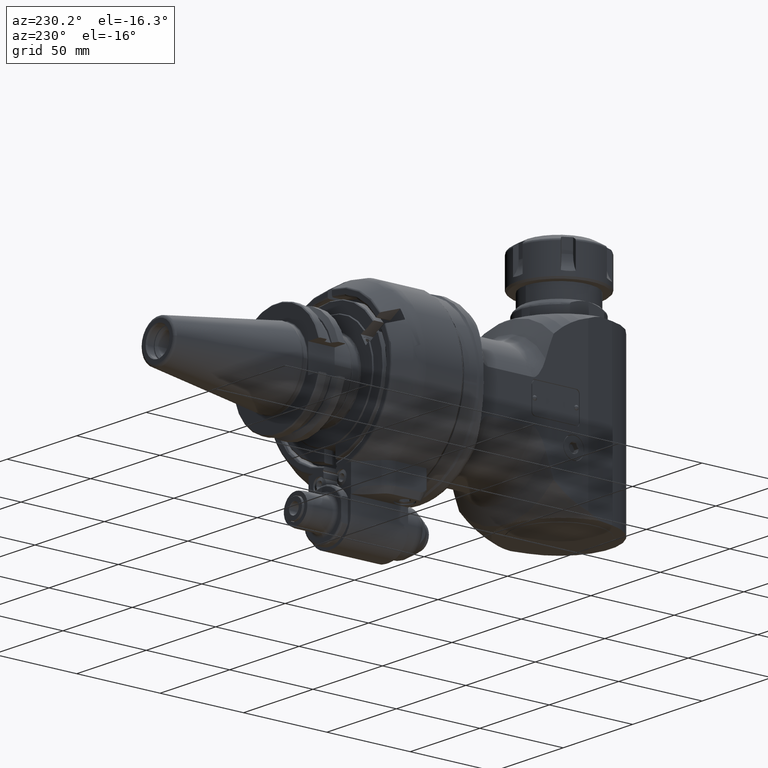
[diagram: clean part render]
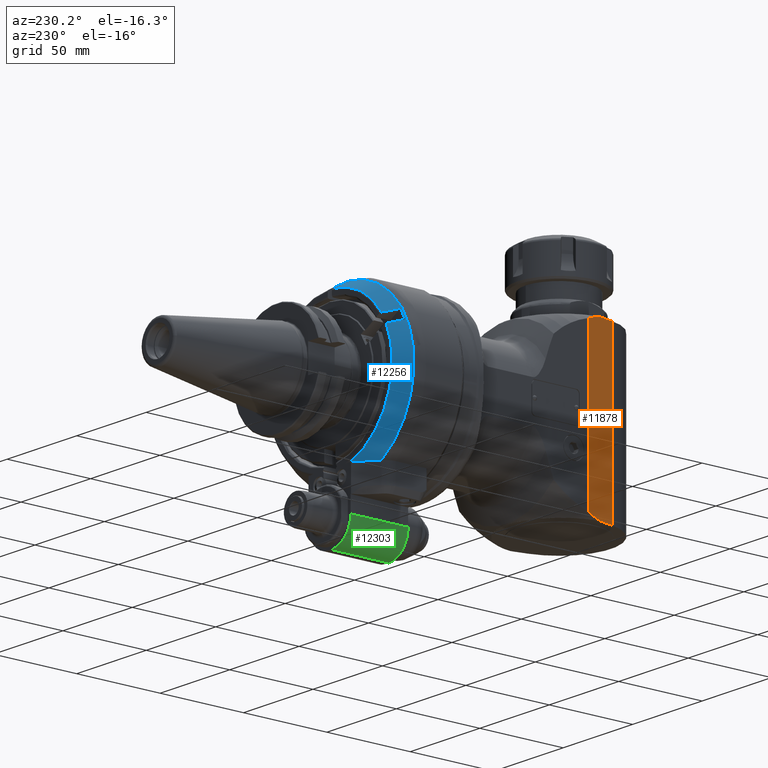
[diagram: same view with three faces highlighted in distinct colors, each labeled with its STEP entity id]
A machine part, auxiliary view with three faces highlighted in distinct colors.
Their STEP definitions:

[orange] entity #11878 — the highlighted planar face has unit normal (0.9781, 0.2079, 0).
#194=ELLIPSE('',#12675,0.276420833278582,0.0986575701612919);
#336=B_SPLINE_CURVE_WITH_KNOTS('',3,(#17508,#17509,#17510,#17511),
 .UNSPECIFIED.,.F.,.F.,(4,4),(0.,1.),.UNSPECIFIED.);
#337=B_SPLINE_CURVE_WITH_KNOTS('',3,(#17513,#17514,#17515,#17516),
 .UNSPECIFIED.,.F.,.F.,(4,4),(0.,0.999999299915996),.UNSPECIFIED.);
#338=B_SPLINE_CURVE_WITH_KNOTS('',3,(#17526,#17527,#17528,#17529),
 .UNSPECIFIED.,.F.,.F.,(4,4),(0.,1.),.UNSPECIFIED.);
#339=B_SPLINE_CURVE_WITH_KNOTS('',3,(#17530,#17531,#17532,#17533),
 .UNSPECIFIED.,.F.,.F.,(4,4),(0.,1.),.UNSPECIFIED.);
#843=LINE('',#17387,#1730);
#850=LINE('',#17520,#1737);
#851=LINE('',#17522,#1738);
#852=LINE('',#17524,#1739);
#1730=VECTOR('',#13969,92.6347024427);
#1737=VECTOR('',#13990,8.79096671277615);
#1738=VECTOR('',#13991,98.);
#1739=VECTOR('',#13992,8.87507655635602);
#2777=FACE_OUTER_BOUND('',#3445,.T.);
#3445=EDGE_LOOP('',(#7969,#7970,#7971,#7972,#7973,#7974,#7975,#7976,#7977));
#4789=VERTEX_POINT('',#17385);
#4790=VERTEX_POINT('',#17386);
#4817=VERTEX_POINT('',#17507);
#4818=VERTEX_POINT('',#17512);
#4819=VERTEX_POINT('',#17517);
#4820=VERTEX_POINT('',#17519);
#4821=VERTEX_POINT('',#17521);
#4822=VERTEX_POINT('',#17523);
#4823=VERTEX_POINT('',#17525);
#6076=EDGE_CURVE('',#4789,#4790,#843,.T.);
#6105=EDGE_CURVE('',#4790,#4817,#336,.T.);
#6106=EDGE_CURVE('',#4817,#4818,#337,.T.);
#6107=EDGE_CURVE('',#4818,#4819,#194,.T.);
#6108=EDGE_CURVE('',#4820,#4819,#850,.T.);
#6109=EDGE_CURVE('',#4821,#4820,#851,.T.);
#6110=EDGE_CURVE('',#4822,#4821,#852,.T.);
#6111=EDGE_CURVE('',#4823,#4822,#338,.T.);
#6112=EDGE_CURVE('',#4823,#4789,#339,.T.);
#7969=ORIENTED_EDGE('',*,*,#6076,.T.);
#7970=ORIENTED_EDGE('',*,*,#6105,.T.);
#7971=ORIENTED_EDGE('',*,*,#6106,.T.);
#7972=ORIENTED_EDGE('',*,*,#6107,.T.);
#7973=ORIENTED_EDGE('',*,*,#6108,.F.);
#7974=ORIENTED_EDGE('',*,*,#6109,.F.);
#7975=ORIENTED_EDGE('',*,*,#6110,.F.);
#7976=ORIENTED_EDGE('',*,*,#6111,.F.);
#7977=ORIENTED_EDGE('',*,*,#6112,.T.);
#11579=PLANE('',#12674);
#11878=ADVANCED_FACE('',(#2777),#11579,.F.);
#12674=AXIS2_PLACEMENT_3D('',#17506,#13986,#13987);
#12675=AXIS2_PLACEMENT_3D('',#17518,#13988,#13989);
#13969=DIRECTION('',(0.,1.,0.));
#13986=DIRECTION('center_axis',(-0.207911690817799,0.,0.978147600733797));
#13987=DIRECTION('ref_axis',(-0.978147600733797,0.,-0.207911690817799));
#13988=DIRECTION('center_axis',(0.20790241635423,9.62309301147959E-5,-0.978149567302302));
#13989=DIRECTION('ref_axis',(0.978148775053199,0.00125609321606149,0.207902371539525));
#13990=DIRECTION('',(-0.978147602821783,-2.11175296912696E-10,-0.207911680994596));
#13991=DIRECTION('',(0.,1.,0.));
#13992=DIRECTION('',(0.978147600733797,0.,0.207911690817799));
#17385=CARTESIAN_POINT('',(267.2074379648,-46.31735122135,-34.));
#17386=CARTESIAN_POINT('',(267.2074379648,46.31735122135,-34.));
#17387=CARTESIAN_POINT('',(267.2074379648,-46.31735122135,-34.));
#17506=CARTESIAN_POINT('Origin',(304.1477751026,-70.8000024,-26.14808895106));
#17507=CARTESIAN_POINT('',(271.7592494227,47.98986308028,-33.03248260713));
#17508=CARTESIAN_POINT('Ctrl Pts',(267.2074379648,46.31735122135,-34.));
#17509=CARTESIAN_POINT('Ctrl Pts',(268.7212545366,46.88467685953,-33.6782283545));
#17510=CARTESIAN_POINT('Ctrl Pts',(270.2386304167,47.4418811097,-33.35570015467));
#17511=CARTESIAN_POINT('Ctrl Pts',(271.7592494227,47.98986308028,-33.03248260713));
#17512=CARTESIAN_POINT('',(275.7586838881,48.9832579808946,-32.1823765888967));
#17513=CARTESIAN_POINT('Ctrl Pts',(271.7592494227,47.98986308028,-33.03248260713));
#17514=CARTESIAN_POINT('Ctrl Pts',(273.091158350351,48.3261944576896,-32.7493766250281));
#17515=CARTESIAN_POINT('Ctrl Pts',(274.42432601514,48.6572299780344,-32.4660030900608));
#17516=CARTESIAN_POINT('Ctrl Pts',(275.75868390301,48.9832578994187,-32.1823765653876));
#17517=CARTESIAN_POINT('',(275.909496398799,48.9999999991108,-32.1503202895644));
#17518=CARTESIAN_POINT('Origin',(275.908681627989,48.9013418968687,-32.1505031724209));
#17519=CARTESIAN_POINT('',(284.5083594153,49.,-30.32257562275));
#17520=CARTESIAN_POINT('',(284.5083594153,49.,-30.32257562275));
#17521=CARTESIAN_POINT('',(284.5083594153,-49.,-30.32257562275));
#17522=CARTESIAN_POINT('',(284.5083594153,-49.,-30.32257562275));
#17523=CARTESIAN_POINT('',(275.8272245754,-49.,-32.16780779572));
#17524=CARTESIAN_POINT('',(275.8272245754,-49.,-32.16780779572));
#17525=CARTESIAN_POINT('',(271.7592494227,-47.98986308028,-33.03248260713));
#17526=CARTESIAN_POINT('Ctrl Pts',(271.7592494227,-47.98986308028,-33.03248260713));
#17527=CARTESIAN_POINT('Ctrl Pts',(273.1139632923,-48.33195312284,-32.74452928498));
#17528=CARTESIAN_POINT('Ctrl Pts',(274.4699790139,-48.66856440992,-32.45629924562));
#17529=CARTESIAN_POINT('Ctrl Pts',(275.8272245754,-49.,-32.16780779572));
#17530=CARTESIAN_POINT('Ctrl Pts',(271.7592494227,-47.98986308028,-33.03248260713));
#17531=CARTESIAN_POINT('Ctrl Pts',(270.2386304167,-47.4418811097,-33.35570015467));
#17532=CARTESIAN_POINT('Ctrl Pts',(268.7212545366,-46.88467685953,-33.6782283545));
#17533=CARTESIAN_POINT('Ctrl Pts',(267.2074379648,-46.31735122135,-34.));

[blue] entity #12256 — the highlighted conical surface has half-angle 30 deg.
#124=CONICAL_SURFACE('',#13412,46.84048999,0.523598775598299);
#306=(
BOUNDED_CURVE()
B_SPLINE_CURVE(2,(#26812,#26813,#26814),.UNSPECIFIED.,.F.,.F.)
B_SPLINE_CURVE_WITH_KNOTS((3,3),(2.8844916667244,4.73034461921109),
 .UNSPECIFIED.)
CURVE()
GEOMETRIC_REPRESENTATION_ITEM()
RATIONAL_B_SPLINE_CURVE((1.03298555452386,1.03049774868244,1.01131829580632))
REPRESENTATION_ITEM('')
);
#506=B_SPLINE_CURVE_WITH_KNOTS('',3,(#26736,#26737,#26738,#26739,#26740,
#26741,#26742,#26743,#26744,#26745),.UNSPECIFIED.,.F.,.F.,(4,3,3,4),(0.,
0.3333333333333,0.6666666666667,0.999997659970445),.UNSPECIFIED.);
#510=B_SPLINE_CURVE_WITH_KNOTS('',3,(#26878,#26879,#26880,#26881,#26882,
#26883,#26884,#26885,#26886,#26887),.UNSPECIFIED.,.F.,.F.,(4,3,3,4),(7.66596114732898E-6,
0.3333333333333,0.6666666666667,1.),.UNSPECIFIED.);
#511=B_SPLINE_CURVE_WITH_KNOTS('',3,(#26891,#26892,#26893,#26894,#26895,
#26896,#26897,#26898,#26899,#26900),.UNSPECIFIED.,.F.,.F.,(4,3,3,4),(0.,
0.3333333333333,0.6666666666667,0.999992857018884),.UNSPECIFIED.);
#3155=FACE_OUTER_BOUND('',#3885,.T.);
#3885=EDGE_LOOP('',(#10309,#10310,#10311,#10312,#10313,#10314,#10315,#10316));
#4555=CIRCLE('',#13409,49.39230484541);
#4557=CIRCLE('',#13413,44.28867513459);
#4558=CIRCLE('',#13414,48.90747728811);
#4559=CIRCLE('',#13415,44.28867513459);
#5675=VERTEX_POINT('',#26733);
#5676=VERTEX_POINT('',#26735);
#5679=VERTEX_POINT('',#26759);
#5680=VERTEX_POINT('',#26811);
#5681=VERTEX_POINT('',#26875);
#5682=VERTEX_POINT('',#26877);
#5683=VERTEX_POINT('',#26888);
#5684=VERTEX_POINT('',#26890);
#7296=EDGE_CURVE('',#5676,#5675,#506,.T.);
#7301=EDGE_CURVE('',#5676,#5679,#4555,.T.);
#7302=EDGE_CURVE('',#5679,#5680,#306,.T.);
#7305=EDGE_CURVE('',#5681,#5675,#4557,.T.);
#7306=EDGE_CURVE('',#5681,#5682,#510,.T.);
#7307=EDGE_CURVE('',#5683,#5682,#4558,.T.);
#7308=EDGE_CURVE('',#5683,#5684,#511,.T.);
#7309=EDGE_CURVE('',#5680,#5684,#4559,.T.);
#10309=ORIENTED_EDGE('',*,*,#7302,.F.);
#10310=ORIENTED_EDGE('',*,*,#7301,.F.);
#10311=ORIENTED_EDGE('',*,*,#7296,.T.);
#10312=ORIENTED_EDGE('',*,*,#7305,.F.);
#10313=ORIENTED_EDGE('',*,*,#7306,.T.);
#10314=ORIENTED_EDGE('',*,*,#7307,.F.);
#10315=ORIENTED_EDGE('',*,*,#7308,.T.);
#10316=ORIENTED_EDGE('',*,*,#7309,.F.);
#12256=ADVANCED_FACE('',(#3155),#124,.T.);
#13409=AXIS2_PLACEMENT_3D('',#26809,#16033,#16034);
#13412=AXIS2_PLACEMENT_3D('',#26874,#16039,#16040);
#13413=AXIS2_PLACEMENT_3D('',#26876,#16041,#16042);
#13414=AXIS2_PLACEMENT_3D('',#26889,#16043,#16044);
#13415=AXIS2_PLACEMENT_3D('',#26901,#16045,#16046);
#16033=DIRECTION('center_axis',(0.,-1.,0.));
#16034=DIRECTION('ref_axis',(-0.0303691031364992,0.,0.999538752412674));
#16039=DIRECTION('center_axis',(0.,-1.,0.));
#16040=DIRECTION('ref_axis',(0.,0.,1.));
#16041=DIRECTION('center_axis',(0.,1.,0.));
#16042=DIRECTION('ref_axis',(-0.823803402997795,0.,0.566875606468697));
#16043=DIRECTION('center_axis',(0.,1.,0.));
#16044=DIRECTION('ref_axis',(-0.899586791598834,0.,0.436742034135616));
#16045=DIRECTION('center_axis',(0.,1.,0.));
#16046=DIRECTION('ref_axis',(-0.317304540867809,0.,-0.948323693864426));
#26733=CARTESIAN_POINT('',(-1.49999994161814,39.0000000307714,44.2632663040608));
#26735=CARTESIAN_POINT('',(-1.50000010664755,30.1602661977814,49.3695157362103));
#26736=CARTESIAN_POINT('Ctrl Pts',(-1.5,30.16027835559,49.36950871544));
#26737=CARTESIAN_POINT('Ctrl Pts',(-1.5,31.18982877885,48.77482320417));
#26738=CARTESIAN_POINT('Ctrl Pts',(-1.5,32.2036186971448,48.1892313102351));
#26739=CARTESIAN_POINT('Ctrl Pts',(-1.5,33.2013919082089,47.612880877291));
#26740=CARTESIAN_POINT('Ctrl Pts',(-1.5,34.1991651192732,47.0365304443467));
#26741=CARTESIAN_POINT('Ctrl Pts',(-1.5,35.1809216231068,46.4694214723933));
#26742=CARTESIAN_POINT('Ctrl Pts',(-1.5,36.1472838686536,45.9111942687465));
#26743=CARTESIAN_POINT('Ctrl Pts',(-1.5,37.1136393302515,45.3529709839044));
#26744=CARTESIAN_POINT('Ctrl Pts',(-1.5,38.0646007497001,44.8036293426678));
#26745=CARTESIAN_POINT('Ctrl Pts',(-1.5,39.0000000311363,44.2632663046979));
#26759=CARTESIAN_POINT('',(-25.9923022789438,30.1602540400476,-42.0000000006684));
#26809=CARTESIAN_POINT('Origin',(0.,30.16025403784,0.));
#26811=CARTESIAN_POINT('',(-14.0529977328341,38.9999999985392,-41.999999999679));
#26812=CARTESIAN_POINT('Ctrl Pts',(-25.9923022783559,30.1602540415666,-42.));
#26813=CARTESIAN_POINT('Ctrl Pts',(-19.6974303646479,35.8978898913525,-42.));
#26814=CARTESIAN_POINT('Ctrl Pts',(-14.0529977330381,38.9999999978967,-42.));
#26874=CARTESIAN_POINT('Origin',(0.,34.58012701892,0.));
#26875=CARTESIAN_POINT('',(-36.4851322129092,39.0000574701093,25.1061533734197));
#26876=CARTESIAN_POINT('Origin',(0.,39.,0.));
#26877=CARTESIAN_POINT('',(-40.4965205788,31.,27.42212894174));
#26878=CARTESIAN_POINT('Ctrl Pts',(-36.4851325523638,39.0000575278077,25.106152984854));
#26879=CARTESIAN_POINT('Ctrl Pts',(-36.9021284692853,38.1686740178928,25.3469056897396));
#26880=CARTESIAN_POINT('Ctrl Pts',(-37.3285997235782,37.3183138636494,25.5931289832072));
#26881=CARTESIAN_POINT('Ctrl Pts',(-37.7642990141934,36.4494677703336,25.8446800859296));
#26882=CARTESIAN_POINT('Ctrl Pts',(-38.2000083252007,35.5806016949368,26.0962369739281));
#26883=CARTESIAN_POINT('Ctrl Pts',(-38.6449460969957,34.6932488301632,26.3531219162466));
#26884=CARTESIAN_POINT('Ctrl Pts',(-39.1001961495135,33.7852448292439,26.6159606566164));
#26885=CARTESIAN_POINT('Ctrl Pts',(-39.5554462020312,32.8772408283249,26.8787993969861));
#26886=CARTESIAN_POINT('Ctrl Pts',(-40.0210085352717,31.94858569126,27.147591935407));
#26887=CARTESIAN_POINT('Ctrl Pts',(-40.4965205787996,31.,27.4221289417408));
#26888=CARTESIAN_POINT('',(-43.9965205788,31.,21.35995111525));
#26889=CARTESIAN_POINT('Origin',(0.,31.,0.));
#26890=CARTESIAN_POINT('',(-39.9851346518321,39.0000535829498,19.0439758254266));
#26891=CARTESIAN_POINT('Ctrl Pts',(-43.9965205787991,31.,21.3599511152515));
#26892=CARTESIAN_POINT('Ctrl Pts',(-43.5214324221258,31.94774009122,21.0856588401073));
#26893=CARTESIAN_POINT('Ctrl Pts',(-43.0561505057139,32.8758359954399,20.8170282004178));
#26894=CARTESIAN_POINT('Ctrl Pts',(-42.6009808609627,33.7836797088564,20.5542358834937));
#26895=CARTESIAN_POINT('Ctrl Pts',(-42.1458112162113,34.6915234222732,20.2914435665696));
#26896=CARTESIAN_POINT('Ctrl Pts',(-41.7007538431207,35.5791149448868,20.0344895724109));
#26897=CARTESIAN_POINT('Ctrl Pts',(-41.2648942837493,36.4482807184811,19.782845938479));
#26898=CARTESIAN_POINT('Ctrl Pts',(-40.8290440643879,37.317427866771,19.5312076970043));
#26899=CARTESIAN_POINT('Ctrl Pts',(-40.4023912645511,38.168150055722,19.284879588168));
#26900=CARTESIAN_POINT('Ctrl Pts',(-39.9851344961698,39.0000536366557,19.0439762806218));
#26901=CARTESIAN_POINT('Origin',(0.,39.,0.));

[green] entity #12303 — the highlighted cylindrical surface (edge-blend (fillet) strip) has radius 14 mm, axis along (0, -1, 0).
#1279=LINE('',#24457,#2166);
#1463=LINE('',#27239,#2350);
#2166=VECTOR('',#15365,34.5);
#2350=VECTOR('',#16229,34.5);
#2711=CYLINDRICAL_SURFACE('',#13489,14.);
#3202=FACE_OUTER_BOUND('',#3935,.T.);
#3935=EDGE_LOOP('',(#10521,#10522,#10523,#10524));
#4401=CIRCLE('',#13113,14.);
#4429=CIRCLE('',#13159,14.);
#5401=VERTEX_POINT('',#24106);
#5402=VERTEX_POINT('',#24108);
#5449=VERTEX_POINT('',#24455);
#5475=VERTEX_POINT('',#24508);
#6896=EDGE_CURVE('',#5401,#5402,#4401,.T.);
#6960=EDGE_CURVE('',#5401,#5449,#1279,.T.);
#6986=EDGE_CURVE('',#5475,#5449,#4429,.T.);
#7380=EDGE_CURVE('',#5475,#5402,#1463,.T.);
#10521=ORIENTED_EDGE('',*,*,#7380,.T.);
#10522=ORIENTED_EDGE('',*,*,#6896,.F.);
#10523=ORIENTED_EDGE('',*,*,#6960,.T.);
#10524=ORIENTED_EDGE('',*,*,#6986,.F.);
#12303=ADVANCED_FACE('',(#3202),#2711,.T.);
#13113=AXIS2_PLACEMENT_3D('',#24109,#15259,#15260);
#13159=AXIS2_PLACEMENT_3D('',#24510,#15402,#15403);
#13489=AXIS2_PLACEMENT_3D('',#27240,#16230,#16231);
#15259=DIRECTION('center_axis',(0.,-1.,0.));
#15260=DIRECTION('ref_axis',(-1.,0.,0.));
#15365=DIRECTION('',(0.,1.,0.));
#15402=DIRECTION('center_axis',(0.,1.,0.));
#15403=DIRECTION('ref_axis',(0.,0.,-1.));
#16229=DIRECTION('',(0.,-1.,0.));
#16230=DIRECTION('center_axis',(0.,-1.,0.));
#16231=DIRECTION('ref_axis',(0.,0.,-1.));
#24106=CARTESIAN_POINT('',(-15.,5.,-67.));
#24108=CARTESIAN_POINT('',(-1.,5.,-81.));
#24109=CARTESIAN_POINT('Origin',(-1.,5.,-67.));
#24455=CARTESIAN_POINT('',(-15.,39.5,-67.));
#24457=CARTESIAN_POINT('',(-15.,5.,-67.));
#24508=CARTESIAN_POINT('',(-1.,39.5,-81.));
#24510=CARTESIAN_POINT('Origin',(-1.,39.5,-67.));
#27239=CARTESIAN_POINT('',(-1.,39.5,-81.));
#27240=CARTESIAN_POINT('Origin',(-1.,31.,-67.));